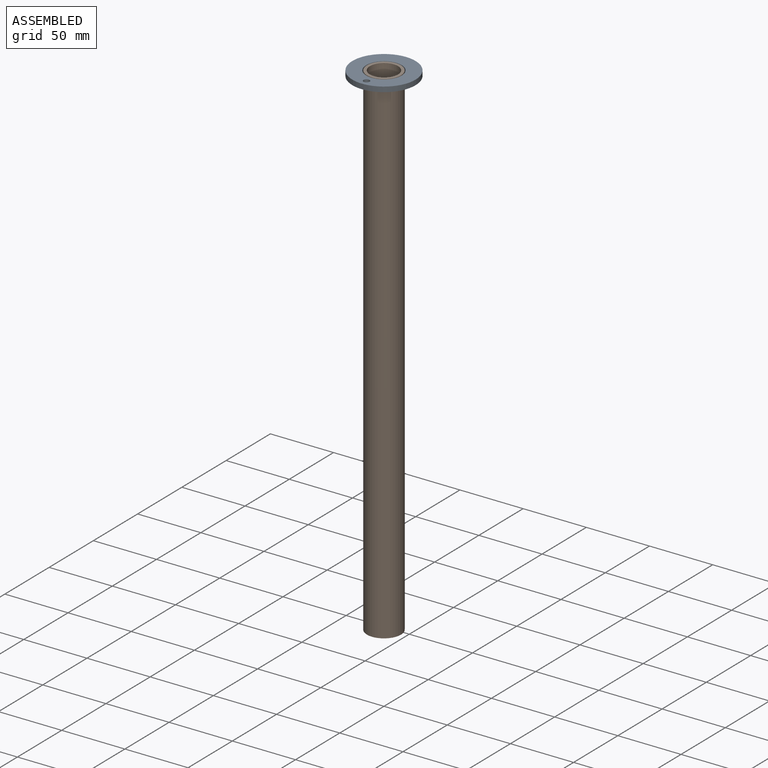
[diagram: assembled view]
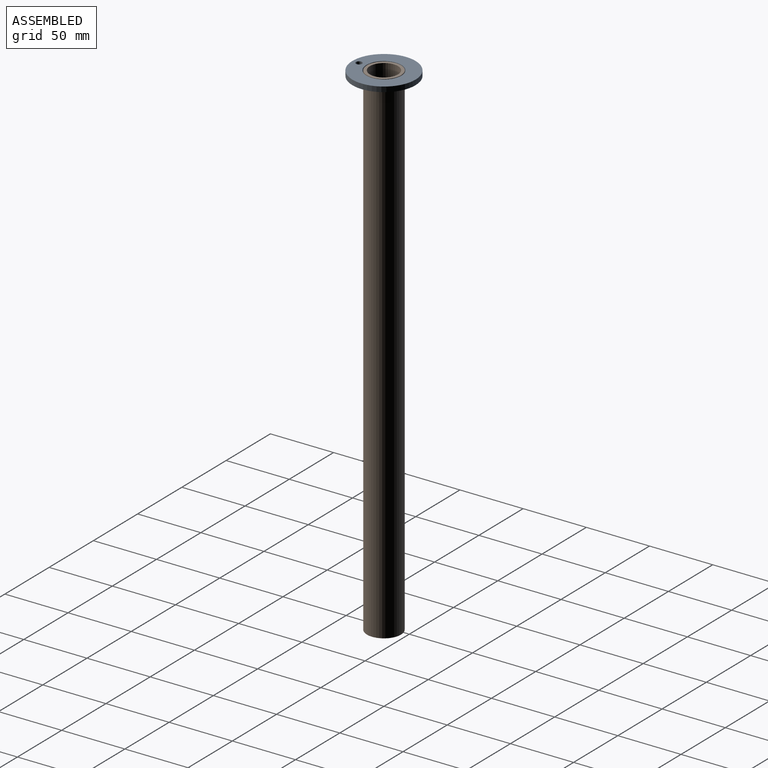
[diagram: assembled view, second angle]
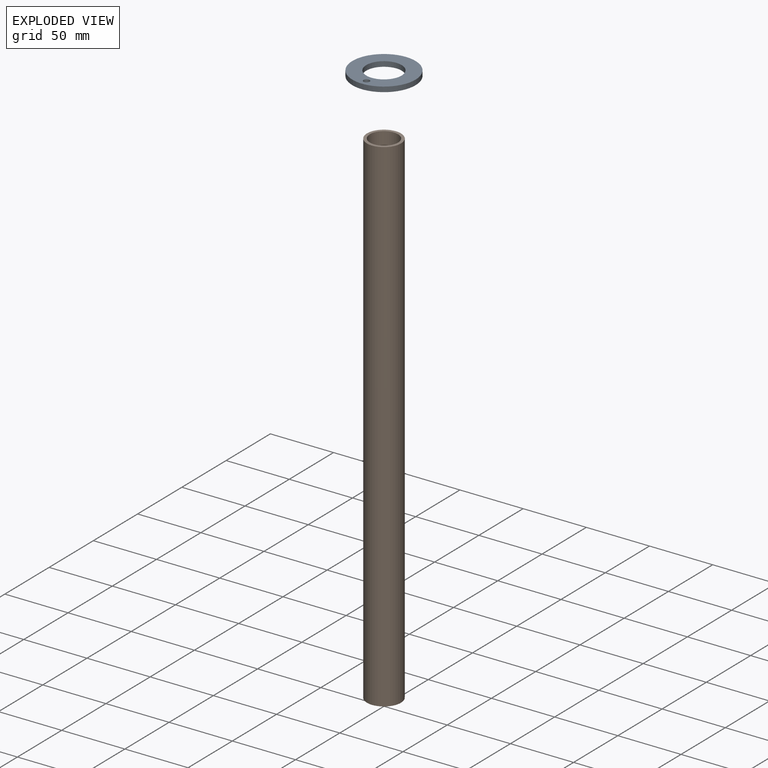
[diagram: exploded view]
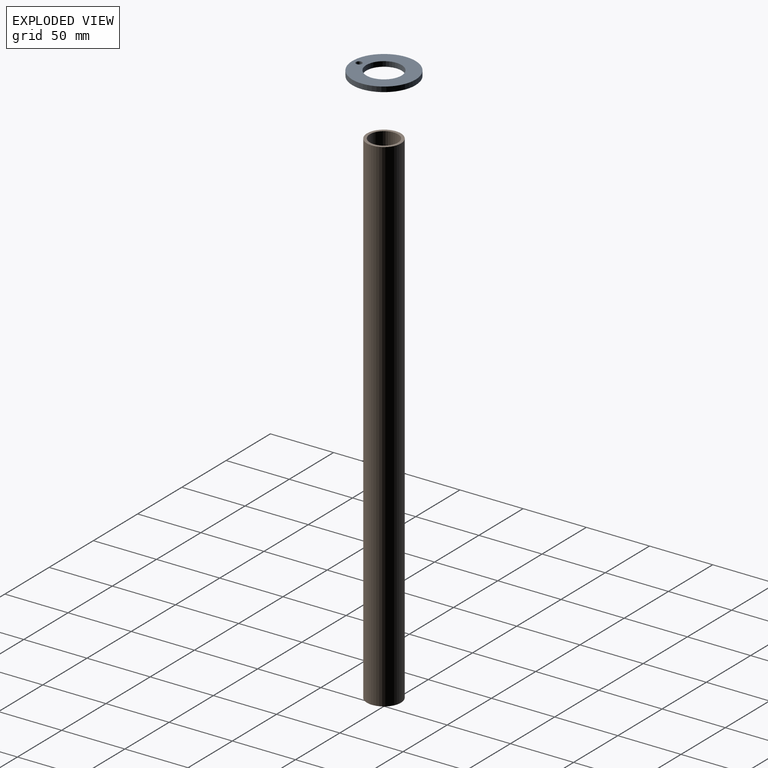
[diagram: exploded view, second angle]
ASSEMBLY  parts=2 mates=2
PART A: 5 faces, bbox 50x4x50 mm
  f0: cylinder r=14mm len=28mm, axis (0,-1,0), area 351.9mm2, adj f1,f2
  f1: plane 50x50mm, normal (0,1,0), area 1329.6mm2, adj f0,f3,f4
  f2: plane 50x50mm, normal (0,-1,0), area 1329.6mm2, adj f0,f3,f4
  f3: cylinder r=25mm len=50mm, axis (0,-1,0), area 628.3mm2, adj f1,f2
  f4: cylinder r=2.4mm len=4.8mm, axis (0,1,0), area 60.3mm2, adj f1,f2
PART B: 4 faces, bbox 26.9x26.9x400 mm
  f0: cylinder r=11.15mm len=400mm, axis (0,0,-1), area 28023mm2, adj f1,f2
  f1: plane 26.9x26.9mm, normal (0,0,1), area 177.8mm2, adj f0,f3
  f2: plane 26.9x26.9mm, normal (0,0,-1), area 177.8mm2, adj f0,f3
  f3: cylinder r=13.45mm len=400mm, axis (0,0,-1), area 33803.5mm2, adj f1,f2
PLACE A rot(axis=(1,0,0),90deg) t=(0,0,198)mm
PLACE B at identity fixed
MATE planar A.f1 <-> B.f3  axis (0,0,1) through (0,0.27,200)mm
MATE cylindrical A.f3 <-> B.f3  axis (0,0,-1) through (0,0,198)mm
